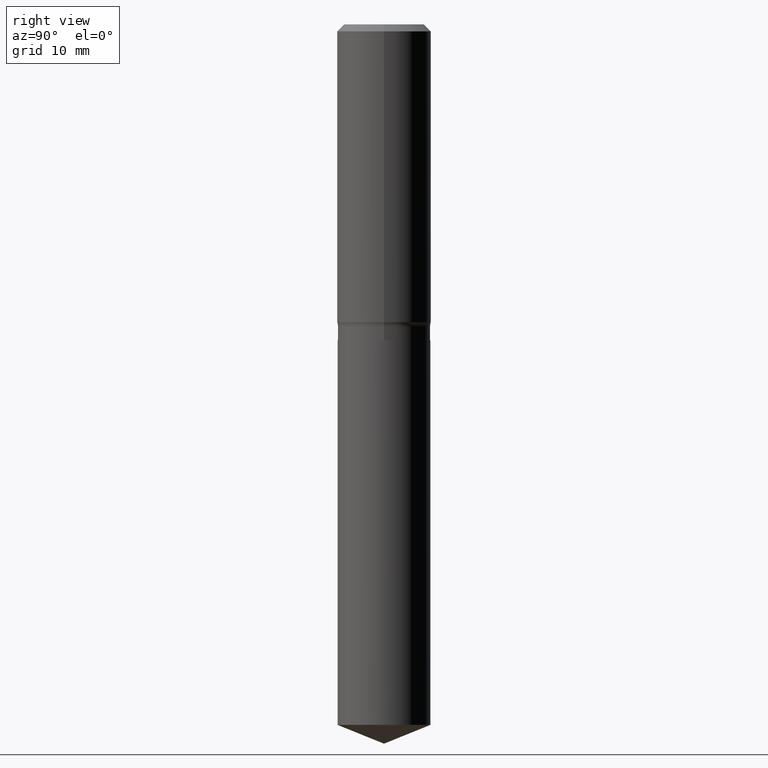
[diagram: clean part render]
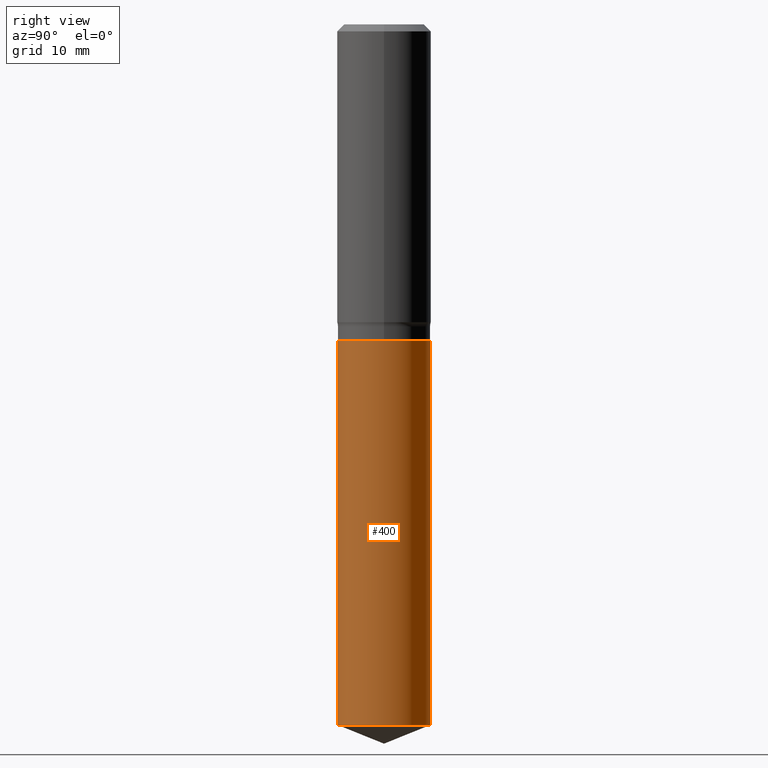
[diagram: same view with one face highlighted and labeled with its STEP entity id]
A machine part, right view. The second image highlights one B-rep face of the part: STEP entity #400.
In plain terms, the highlighted cylindrical surface (partial cylindrical patch) has radius 6.8999 mm, axis along (-0, 0, 1).
Its self-contained STEP definition (entity closure, byte-faithful):
#28 = DIRECTION ( 'NONE',  ( -2.445706889125734915E-29, 3.491140390521369310E-15, 1.000000000000000000 ) ) ;
#38 = AXIS2_PLACEMENT_3D ( 'NONE', #211, #278, #428 ) ;
#41 = EDGE_CURVE ( 'NONE', #88, #231, #45, .T. ) ;
#45 = CIRCLE ( 'NONE', #141, 0.2716500000000000026 ) ;
#61 = FACE_OUTER_BOUND ( 'NONE', #254, .T. ) ;
#68 = CARTESIAN_POINT ( 'NONE',  ( 1.930189341692412359E-15, 0.2716499999999935633, -1.850400000000001155 ) ) ;
#88 = VERTEX_POINT ( 'NONE', #362 ) ;
#103 = ORIENTED_EDGE ( 'NONE', *, *, #154, .T. ) ;
#112 = CARTESIAN_POINT ( 'NONE',  ( 4.525095478964977394E-29, -6.460637069395357576E-15, -1.850400000000000267 ) ) ;
#113 = VECTOR ( 'NONE', #482, 39.37007874015748143 ) ;
#118 = DIRECTION ( 'NONE',  ( -6.982962677686265133E-15, -1.000000000000000000, 3.016949744521549444E-15 ) ) ;
#136 = LINE ( 'NONE', #216, #113 ) ;
#141 = AXIS2_PLACEMENT_3D ( 'NONE', #112, #263, #118 ) ;
#154 = EDGE_CURVE ( 'NONE', #370, #252, #249, .T. ) ;
#171 = CARTESIAN_POINT ( 'NONE',  ( 4.525095478964977954E-29, -6.460637069395358365E-15, -1.850400000000000489 ) ) ;
#177 = ORIENTED_EDGE ( 'NONE', *, *, #268, .T. ) ;
#211 = CARTESIAN_POINT ( 'NONE',  ( 1.003391885295695671E-28, -1.432424324015218274E-14, -4.102846275751880434 ) ) ;
#216 = CARTESIAN_POINT ( 'NONE',  ( 1.930189341692357138E-15, 0.2716499999999935633, -1.850400000000001377 ) ) ;
#224 = LINE ( 'NONE', #439, #297 ) ;
#231 = VERTEX_POINT ( 'NONE', #68 ) ;
#249 = CIRCLE ( 'NONE', #38, 0.2716500000000000026 ) ;
#251 = CARTESIAN_POINT ( 'NONE',  ( 1.930189341692412753E-15, 0.2716499999999857917, -4.102846275751881322 ) ) ;
#252 = VERTEX_POINT ( 'NONE', #251 ) ;
#254 = EDGE_LOOP ( 'NONE', ( #103, #177, #422, #299 ) ) ;
#263 = DIRECTION ( 'NONE',  ( -2.445706889125734915E-29, 3.491140390521369310E-15, 1.000000000000000000 ) ) ;
#266 = EDGE_CURVE ( 'NONE', #370, #88, #224, .T. ) ;
#268 = EDGE_CURVE ( 'NONE', #252, #231, #136, .T. ) ;
#278 = DIRECTION ( 'NONE',  ( -2.445706889125734915E-29, 3.491140390521369310E-15, 1.000000000000000000 ) ) ;
#293 = DIRECTION ( 'NONE',  ( -6.982962677686265133E-15, -1.000000000000000000, 3.016949744521549444E-15 ) ) ;
#297 = VECTOR ( 'NONE', #335, 39.37007874015748143 ) ;
#299 = ORIENTED_EDGE ( 'NONE', *, *, #266, .F. ) ;
#335 = DIRECTION ( 'NONE',  ( -2.445706889125734915E-29, 3.491140390521369704E-15, 1.000000000000000000 ) ) ;
#362 = CARTESIAN_POINT ( 'NONE',  ( -1.896921811393429049E-15, -0.2716500000000064419, -1.850399999999999379 ) ) ;
#370 = VERTEX_POINT ( 'NONE', #405 ) ;
#375 = CYLINDRICAL_SURFACE ( 'NONE', #459, 0.2716500000000000026 ) ;
#400 = ADVANCED_FACE ( 'NONE', ( #61 ), #375, .T. ) ;
#405 = CARTESIAN_POINT ( 'NONE',  ( -1.896921811393374223E-15, -0.2716500000000143800, -4.102846275751879546 ) ) ;
#422 = ORIENTED_EDGE ( 'NONE', *, *, #41, .F. ) ;
#428 = DIRECTION ( 'NONE',  ( -6.982962677686265133E-15, -1.000000000000000000, 4.022599659362065925E-15 ) ) ;
#439 = CARTESIAN_POINT ( 'NONE',  ( -1.896921811393429049E-15, -0.2716500000000064419, -1.850399999999999823 ) ) ;
#459 = AXIS2_PLACEMENT_3D ( 'NONE', #171, #28, #293 ) ;
#482 = DIRECTION ( 'NONE',  ( -2.445706889125734915E-29, 3.491140390521369704E-15, 1.000000000000000000 ) ) ;